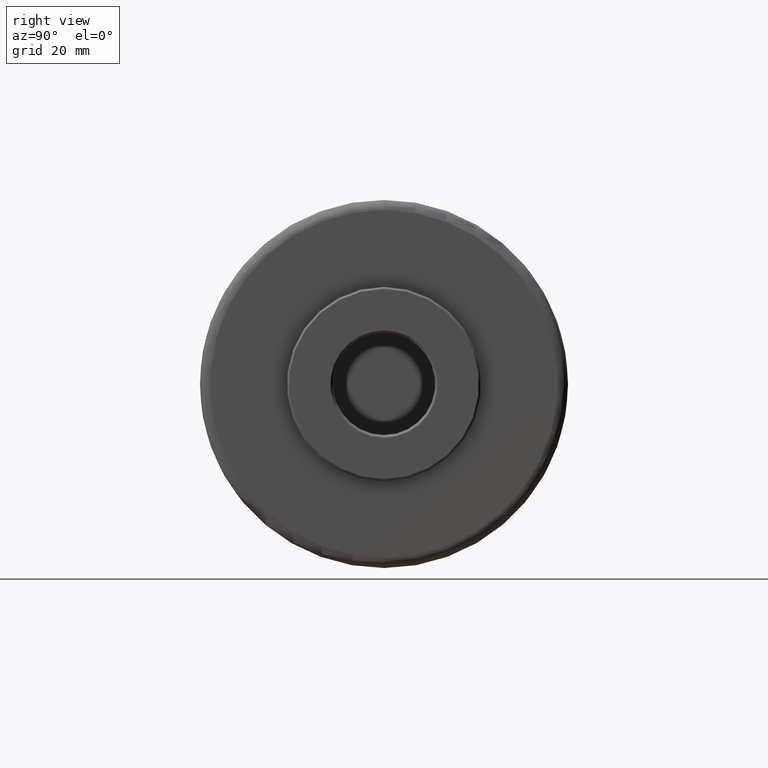
[diagram: clean part render]
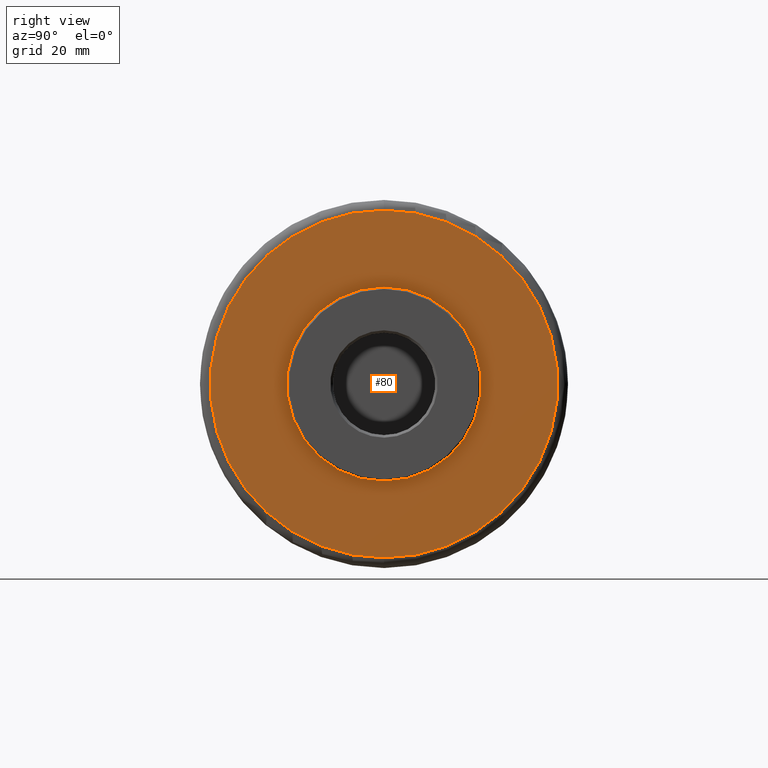
[diagram: same view with one face highlighted and labeled with its STEP entity id]
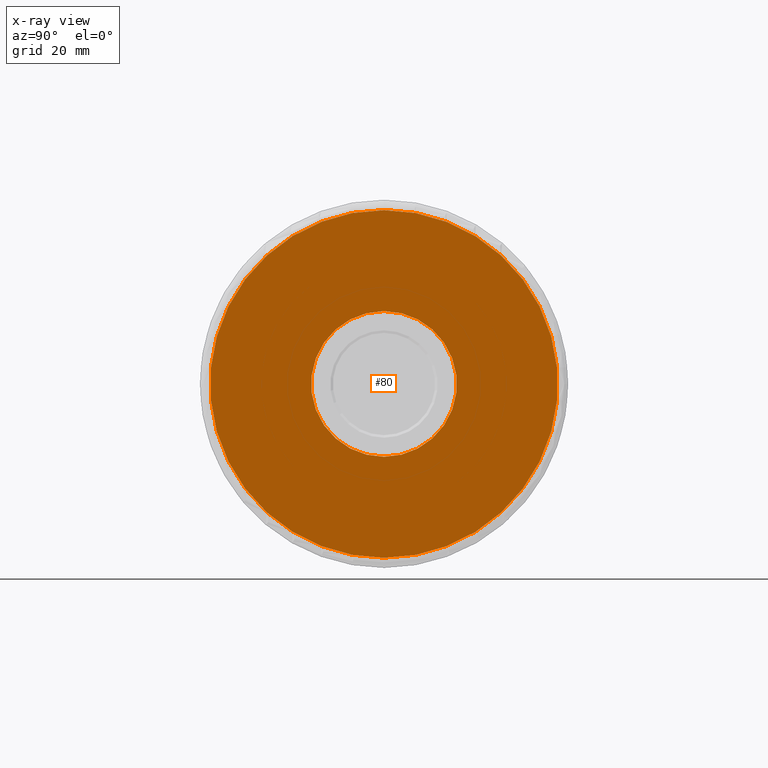
[diagram: x-ray of the same camera — body ghosted, the highlighted face saturated]
A machine part, right view. The second image highlights one B-rep face of the part: STEP entity #80.
The next image is the same camera in x-ray: the body ghosted, the highlighted face saturated — about 0% of this face is hidden behind the body in this view.
In plain terms, the highlighted planar face has unit normal (-1, 0, 0).
Its self-contained STEP definition (entity closure, byte-faithful):
#1 = AXIS2_PLACEMENT_3D ( 'NONE', #726, #116, #1301 ) ;
#14 = CARTESIAN_POINT ( 'NONE',  ( 96.50000000000002800, 2.736911063134408300E-045, 14.24999999999999300 ) ) ;
#23 = ORIENTED_EDGE ( 'NONE', *, *, #589, .T. ) ;
#54 = VERTEX_POINT ( 'NONE', #107 ) ;
#60 = VERTEX_POINT ( 'NONE', #757 ) ;
#80 = ADVANCED_FACE ( 'NONE', ( #849, #605 ), #260, .F. ) ;
#107 = CARTESIAN_POINT ( 'NONE',  ( 96.50000000000000000, 0.0000000000000000000, 34.00000000000000700 ) ) ;
#116 = DIRECTION ( 'NONE',  ( -1.000000000000000000, 0.0000000000000000000, 0.0000000000000000000 ) ) ;
#243 = CARTESIAN_POINT ( 'NONE',  ( 96.50000000000002800, 1.232595164407830900E-029, 0.0000000000000000000 ) ) ;
#255 = CARTESIAN_POINT ( 'NONE',  ( 96.50000000000002800, 1.232595164407830900E-029, 0.0000000000000000000 ) ) ;
#260 = PLANE ( 'NONE',  #1 ) ;
#270 = ORIENTED_EDGE ( 'NONE', *, *, #1079, .T. ) ;
#298 = AXIS2_PLACEMENT_3D ( 'NONE', #1078, #421, #1187 ) ;
#338 = DIRECTION ( 'NONE',  ( 0.0000000000000000000, -1.000000000000000000, 0.0000000000000000000 ) ) ;
#421 = DIRECTION ( 'NONE',  ( 1.000000000000000000, -0.0000000000000000000, -0.0000000000000000000 ) ) ;
#456 = EDGE_CURVE ( 'NONE', #60, #1254, #522, .T. ) ;
#474 = DIRECTION ( 'NONE',  ( 1.000000000000000000, -0.0000000000000000000, -0.0000000000000000000 ) ) ;
#503 = ORIENTED_EDGE ( 'NONE', *, *, #629, .T. ) ;
#522 = CIRCLE ( 'NONE', #549, 14.24999999999999300 ) ;
#549 = AXIS2_PLACEMENT_3D ( 'NONE', #255, #1339, #1333 ) ;
#580 = EDGE_LOOP ( 'NONE', ( #503, #270 ) ) ;
#589 = EDGE_CURVE ( 'NONE', #1254, #60, #1108, .T. ) ;
#605 = FACE_BOUND ( 'NONE', #1283, .T. ) ;
#629 = EDGE_CURVE ( 'NONE', #54, #1323, #1335, .T. ) ;
#726 = CARTESIAN_POINT ( 'NONE',  ( 96.50000000000000000, 33.90200000000000100, -33.90200000000000100 ) ) ;
#757 = CARTESIAN_POINT ( 'NONE',  ( 96.50000000000002800, 1.745121688784977800E-015, -14.24999999999999300 ) ) ;
#849 = FACE_OUTER_BOUND ( 'NONE', #580, .T. ) ;
#971 = AXIS2_PLACEMENT_3D ( 'NONE', #1117, #474, #1223 ) ;
#996 = DIRECTION ( 'NONE',  ( -1.000000000000000000, -4.869399230812090400E-016, -0.0000000000000000000 ) ) ;
#1078 = CARTESIAN_POINT ( 'NONE',  ( 96.50000000000000000, 0.0000000000000000000, 0.0000000000000000000 ) ) ;
#1079 = EDGE_CURVE ( 'NONE', #1323, #54, #1192, .T. ) ;
#1102 = CARTESIAN_POINT ( 'NONE',  ( 96.50000000000000000, 4.286263797015737300E-015, -34.00000000000000700 ) ) ;
#1108 = CIRCLE ( 'NONE', #1196, 14.24999999999999300 ) ;
#1117 = CARTESIAN_POINT ( 'NONE',  ( 96.50000000000000000, 0.0000000000000000000, 0.0000000000000000000 ) ) ;
#1187 = DIRECTION ( 'NONE',  ( 0.0000000000000000000, 0.0000000000000000000, 1.000000000000000000 ) ) ;
#1192 = CIRCLE ( 'NONE', #298, 34.00000000000000700 ) ;
#1196 = AXIS2_PLACEMENT_3D ( 'NONE', #243, #996, #338 ) ;
#1223 = DIRECTION ( 'NONE',  ( 0.0000000000000000000, 0.0000000000000000000, 1.000000000000000000 ) ) ;
#1254 = VERTEX_POINT ( 'NONE', #14 ) ;
#1283 = EDGE_LOOP ( 'NONE', ( #23, #1366 ) ) ;
#1301 = DIRECTION ( 'NONE',  ( 0.0000000000000000000, 0.0000000000000000000, 1.000000000000000000 ) ) ;
#1323 = VERTEX_POINT ( 'NONE', #1102 ) ;
#1333 = DIRECTION ( 'NONE',  ( 0.0000000000000000000, -1.000000000000000000, 0.0000000000000000000 ) ) ;
#1335 = CIRCLE ( 'NONE', #971, 34.00000000000000700 ) ;
#1339 = DIRECTION ( 'NONE',  ( -1.000000000000000000, -4.869399230812090400E-016, -0.0000000000000000000 ) ) ;
#1366 = ORIENTED_EDGE ( 'NONE', *, *, #456, .T. ) ;